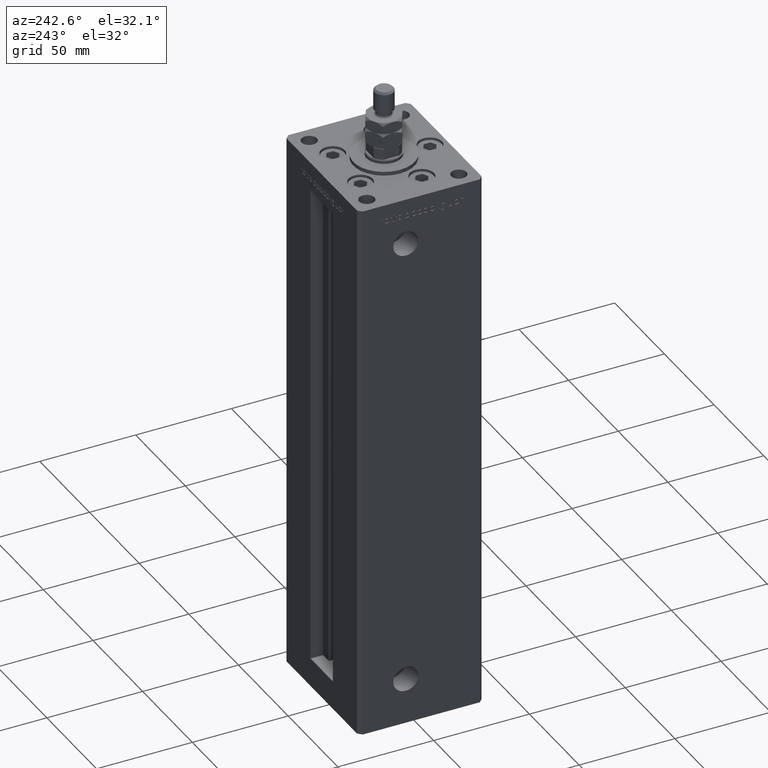
[diagram: clean part render]
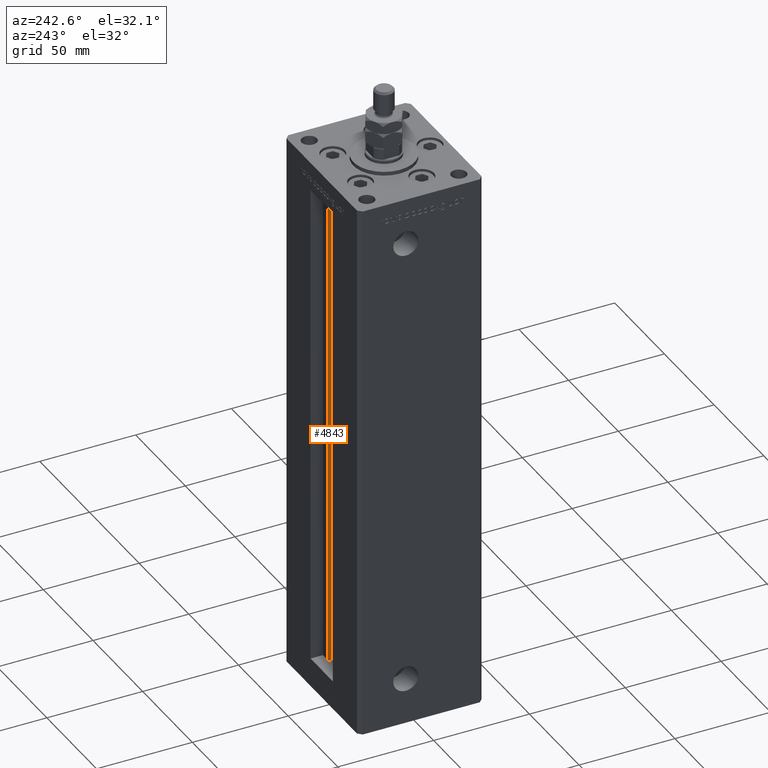
[diagram: same view with one face highlighted and labeled with its STEP entity id]
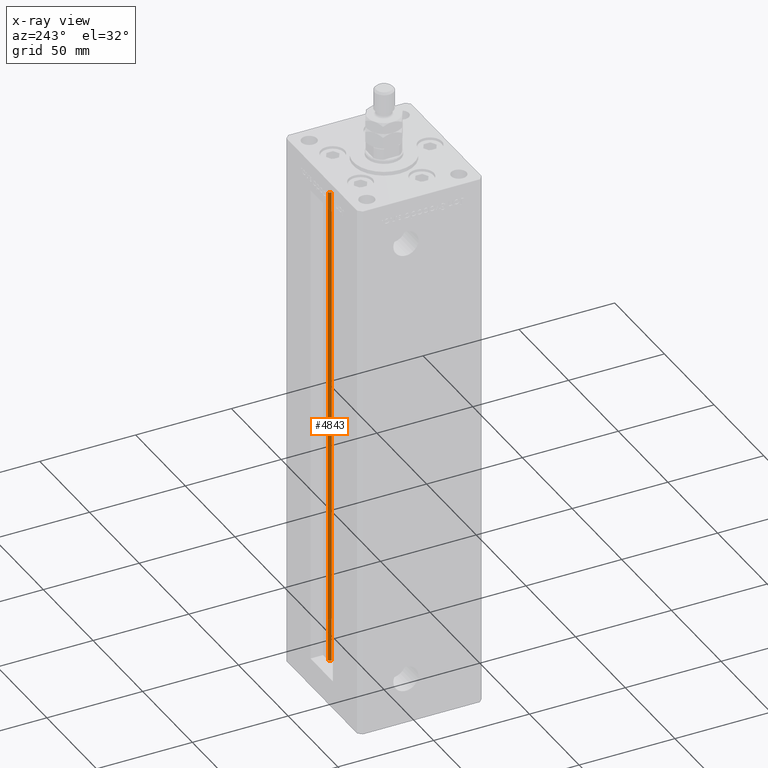
[diagram: x-ray of the same camera — body ghosted, the highlighted face saturated]
A machine part, auxiliary view. The second image highlights one B-rep face of the part: STEP entity #4843.
The next image is the same camera in x-ray: the body ghosted, the highlighted face saturated — about 0% of this face is hidden behind the body in this view.
In plain terms, the highlighted cylindrical surface (edge-blend (fillet) strip) has radius 0.9333 mm, axis along (0, 0, 1).
Its self-contained STEP definition (entity closure, byte-faithful):
#2023 = CARTESIAN_POINT ( 'NONE',  ( 5.375042956467948052, 24.59999999999899245, 256.0000000000000000 ) ) ;
#4843 = ADVANCED_FACE ( 'NONE', ( #43794 ), #43529, .T. ) ;
#7789 = VECTOR ( 'NONE', #30669, 1000.000000000000000 ) ;
#9154 = EDGE_CURVE ( 'NONE', #48090, #50308, #40698, .T. ) ;
#9827 = DIRECTION ( 'NONE',  ( -0.000000000000000000, -0.000000000000000000, 1.000000000000000000 ) ) ;
#10182 = AXIS2_PLACEMENT_3D ( 'NONE', #43259, #9827, #42986 ) ;
#13790 = VECTOR ( 'NONE', #48575, 1000.000000000000000 ) ;
#13836 = LINE ( 'NONE', #34750, #7789 ) ;
#15500 = DIRECTION ( 'NONE',  ( 1.000000000000000000, 0.000000000000000000, 0.000000000000000000 ) ) ;
#17684 = CARTESIAN_POINT ( 'NONE',  ( 6.183333333334001480, 25.99999999999999289, 256.0000000000000000 ) ) ;
#17844 = ORIENTED_EDGE ( 'NONE', *, *, #25833, .T. ) ;
#18130 = ORIENTED_EDGE ( 'NONE', *, *, #9154, .F. ) ;
#19559 = DIRECTION ( 'NONE',  ( -0.000000000000000000, -0.000000000000000000, -1.000000000000000000 ) ) ;
#21997 = CIRCLE ( 'NONE', #23739, 0.9333333333340008142 ) ;
#22020 = ORIENTED_EDGE ( 'NONE', *, *, #42627, .T. ) ;
#23017 = EDGE_CURVE ( 'NONE', #47496, #48090, #44173, .T. ) ;
#23739 = AXIS2_PLACEMENT_3D ( 'NONE', #24668, #53739, #36629 ) ;
#24668 = CARTESIAN_POINT ( 'NONE',  ( 6.183333333334001480, 25.06666666666599141, 256.0000000000000000 ) ) ;
#25833 = EDGE_CURVE ( 'NONE', #47496, #36168, #13836, .T. ) ;
#27679 = AXIS2_PLACEMENT_3D ( 'NONE', #40233, #19559, #15500 ) ;
#30669 = DIRECTION ( 'NONE',  ( -0.000000000000000000, -0.000000000000000000, 1.000000000000000000 ) ) ;
#31380 = EDGE_LOOP ( 'NONE', ( #18130, #47507, #17844, #22020 ) ) ;
#34750 = CARTESIAN_POINT ( 'NONE',  ( 5.375042956467947164, 24.59999999999899245, 0.000000000000000000 ) ) ;
#35539 = CARTESIAN_POINT ( 'NONE',  ( 6.183333333334001480, 25.99999999999999289, 0.000000000000000000 ) ) ;
#36168 = VERTEX_POINT ( 'NONE', #2023 ) ;
#36629 = DIRECTION ( 'NONE',  ( 1.000000000000000000, 0.000000000000000000, 0.000000000000000000 ) ) ;
#40233 = CARTESIAN_POINT ( 'NONE',  ( 6.183333333334001480, 25.06666666666599141, 0.000000000000000000 ) ) ;
#40698 = LINE ( 'NONE', #35539, #13790 ) ;
#42627 = EDGE_CURVE ( 'NONE', #36168, #50308, #21997, .T. ) ;
#42986 = DIRECTION ( 'NONE',  ( 1.000000000000000000, 0.000000000000000000, 0.000000000000000000 ) ) ;
#43259 = CARTESIAN_POINT ( 'NONE',  ( 6.183333333334001480, 25.06666666666599141, 0.000000000000000000 ) ) ;
#43529 = CYLINDRICAL_SURFACE ( 'NONE', #10182, 0.9333333333340008142 ) ;
#43794 = FACE_OUTER_BOUND ( 'NONE', #31380, .T. ) ;
#44173 = CIRCLE ( 'NONE', #27679, 0.9333333333340008142 ) ;
#45260 = CARTESIAN_POINT ( 'NONE',  ( 5.375042956467947164, 24.59999999999899245, 0.000000000000000000 ) ) ;
#45930 = CARTESIAN_POINT ( 'NONE',  ( 6.183333333334001480, 25.99999999999999289, 0.000000000000000000 ) ) ;
#47496 = VERTEX_POINT ( 'NONE', #45260 ) ;
#47507 = ORIENTED_EDGE ( 'NONE', *, *, #23017, .F. ) ;
#48090 = VERTEX_POINT ( 'NONE', #45930 ) ;
#48575 = DIRECTION ( 'NONE',  ( -0.000000000000000000, -0.000000000000000000, 1.000000000000000000 ) ) ;
#50308 = VERTEX_POINT ( 'NONE', #17684 ) ;
#53739 = DIRECTION ( 'NONE',  ( 0.000000000000000000, 0.000000000000000000, -1.000000000000000000 ) ) ;